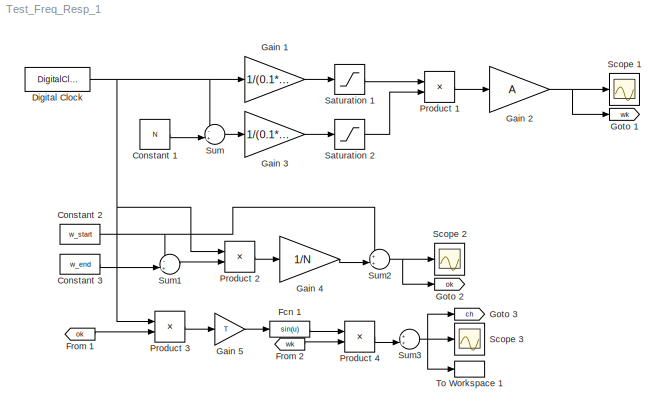
MODEL Test_Freq_Resp_1
KIND model
BLOCK [Constant] Constant 1
  SID = 9
  Value = N
BLOCK [Constant] Constant 2
  SID = 13
  Value = w_start
BLOCK [Constant] Constant 3
  SID = 14
  Value = w_end
BLOCK [DigitalClock] Digital Clock
  SID = 1
  SampleTime = T
BLOCK [Fcn] Fcn 1
  Expr = sin(u)
  SID = 23
BLOCK [From] From 1
  GotoTag = ok
  SID = 22
BLOCK [From] From 2
  GotoTag = wk
  SID = 28
BLOCK [Gain] Gain 1
  Gain = 1/(0.1*N)
  OutDataTypeStr = Inherit: Inherit via internal rule
  ParamDataTypeStr = Inherit: Inherit via internal rule
  SID = 3
  SaturateOnIntegerOverflow = off
BLOCK [Gain] Gain 2
  Gain = A
  OutDataTypeStr = Inherit: Inherit via internal rule
  ParamDataTypeStr = Inherit: Inherit via internal rule
  SID = 5
  SaturateOnIntegerOverflow = off
BLOCK [Gain] Gain 3
  Gain = 1/(0.1*N)
  OutDataTypeStr = Inherit: Inherit via internal rule
  ParamDataTypeStr = Inherit: Inherit via internal rule
  SID = 8
  SaturateOnIntegerOverflow = off
BLOCK [Gain] Gain 4
  Gain = 1/N
  OutDataTypeStr = Inherit: Inherit via internal rule
  ParamDataTypeStr = Inherit: Inherit via internal rule
  SID = 17
  SaturateOnIntegerOverflow = off
BLOCK [Gain] Gain 5
  Gain = T
  OutDataTypeStr = Inherit: Inherit via internal rule
  ParamDataTypeStr = Inherit: Inherit via internal rule
  SID = 26
  SaturateOnIntegerOverflow = off
BLOCK [Goto] Goto 1
  GotoTag = wk
  SID = 12
BLOCK [Goto] Goto 2
  GotoTag = ok
  SID = 20
BLOCK [Goto] Goto 3
  GotoTag = ch
  SID = 32
BLOCK [Product] Product 1
  InputSameDT = off
  OutDataTypeStr = Inherit: Inherit via internal rule
  Ports = [2, 1]
  RndMeth = Floor
  SID = 6
  SaturateOnIntegerOverflow = off
BLOCK [Product] Product 2
  InputSameDT = off
  OutDataTypeStr = Inherit: Inherit via internal rule
  Ports = [2, 1]
  RndMeth = Floor
  SID = 16
  SaturateOnIntegerOverflow = off
BLOCK [Product] Product 3
  InputSameDT = off
  OutDataTypeStr = Inherit: Inherit via internal rule
  Ports = [2, 1]
  RndMeth = Floor
  SID = 21
  SaturateOnIntegerOverflow = off
BLOCK [Product] Product 4
  InputSameDT = off
  OutDataTypeStr = Inherit: Inherit via internal rule
  Ports = [2, 1]
  RndMeth = Floor
  SID = 27
  SaturateOnIntegerOverflow = off
BLOCK [Saturate] Saturation 1
  InputPortMap = u0
  LowerLimit = -1
  Ports = [1, 1]
  SID = 4
  UpperLimit = 1
BLOCK [Saturate] Saturation 2
  InputPortMap = u0
  LowerLimit = -1
  Ports = [1, 1]
  SID = 10
  UpperLimit = 1
BLOCK [Scope] Scope 1
  DataFormat = StructureWithTime
  Floating = off
  NumInputPorts = 1
  Ports = [1]
  SID = 11
  SampleTime = 0
  ShowLegends = off
BLOCK [Scope] Scope 2
  DataFormat = StructureWithTime
  Floating = off
  NumInputPorts = 1
  Ports = [1]
  SID = 19
  SampleTime = 0
  SaveName = ScopeData1
  ShowLegends = off
BLOCK [Scope] Scope 3
  DataFormat = StructureWithTime
  Floating = off
  NumInputPorts = 1
  Ports = [1]
  SID = 30
  SampleTime = 0
  SaveName = ScopeData2
  ShowLegends = off
BLOCK [Sum] Sum
  IconShape = round
  InputSameDT = off
  Inputs = -+|
  OutDataTypeStr = Inherit: Inherit via internal rule
  Ports = [2, 1]
  SID = 7
  SaturateOnIntegerOverflow = off
BLOCK [Sum] Sum1
  IconShape = round
  InputSameDT = off
  Inputs = -+|
  OutDataTypeStr = Inherit: Inherit via internal rule
  Ports = [2, 1]
  SID = 15
  SaturateOnIntegerOverflow = off
BLOCK [Sum] Sum2
  IconShape = round
  InputSameDT = off
  Inputs = ++|
  OutDataTypeStr = Inherit: Inherit via internal rule
  Ports = [2, 1]
  SID = 18
  SaturateOnIntegerOverflow = off
BLOCK [Sum] Sum3
  IconShape = round
  InputSameDT = off
  Inputs = ++|
  OutDataTypeStr = Inherit: Inherit via internal rule
  Ports = [2, 1]
  SID = 29
  SaturateOnIntegerOverflow = off
BLOCK [ToWorkspace] To Workspace 1
  FixptAsFi = on
  MaxDataPoints = inf
  Ports = [1]
  SID = 31
  SampleTime = -1
  Save2DSignal = 3-D array (concatenate along third dimension)
  SaveFormat = Structure With Time
  VariableName = Chirp
LINE Constant 1:1 -> Sum:2
NET Constant 2:1 -> Sum1:1, Sum2:1
LINE Constant 3:1 -> Sum1:2
NET Digital Clock:1 -> Gain 1:1, Product 2:1, Product 3:1, Sum:1
LINE Fcn 1:1 -> Product 4:1
LINE From 1:1 -> Product 3:2
LINE From 2:1 -> Product 4:2
LINE Gain 1:1 -> Saturation 1:1
NET Gain 2:1 -> Goto 1:1, Scope 1:1
LINE Gain 3:1 -> Saturation 2:1
LINE Gain 4:1 -> Sum2:2
LINE Gain 5:1 -> Fcn 1:1
LINE Product 1:1 -> Gain 2:1
LINE Product 2:1 -> Gain 4:1
LINE Product 3:1 -> Gain 5:1
LINE Product 4:1 -> Sum3:2
LINE Saturation 1:1 -> Product 1:1
LINE Saturation 2:1 -> Product 1:2
LINE Sum1:1 -> Product 2:2
NET Sum2:1 -> Goto 2:1, Scope 2:1
NET Sum3:1 -> Goto 3:1, Scope 3:1, To Workspace 1:1
LINE Sum:1 -> Gain 3:1
note: NET lines group one-source signal fan-out (src -> all destinations, sorted); 1:1 wires keep LINE
